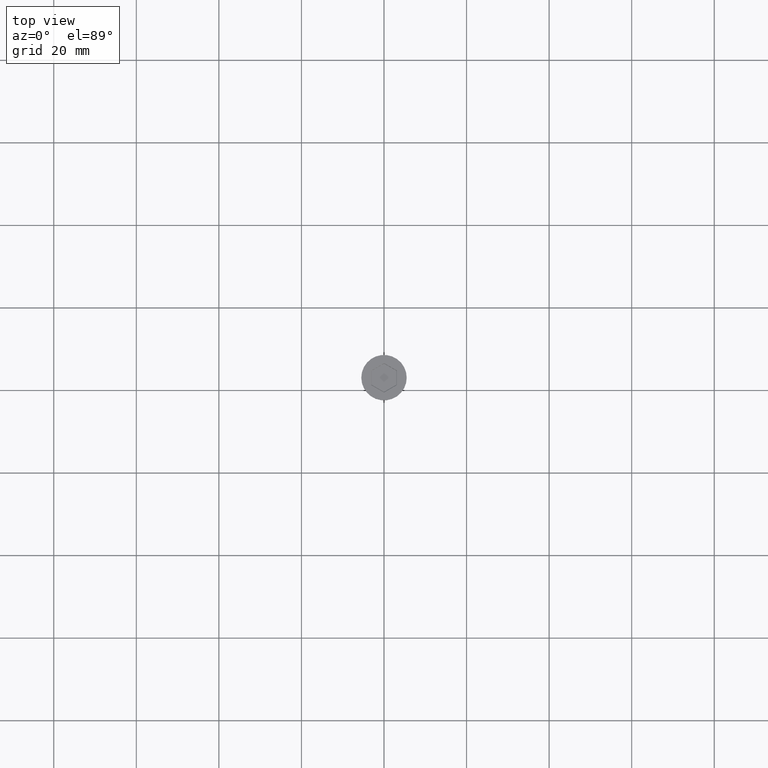
[diagram: clean part render]
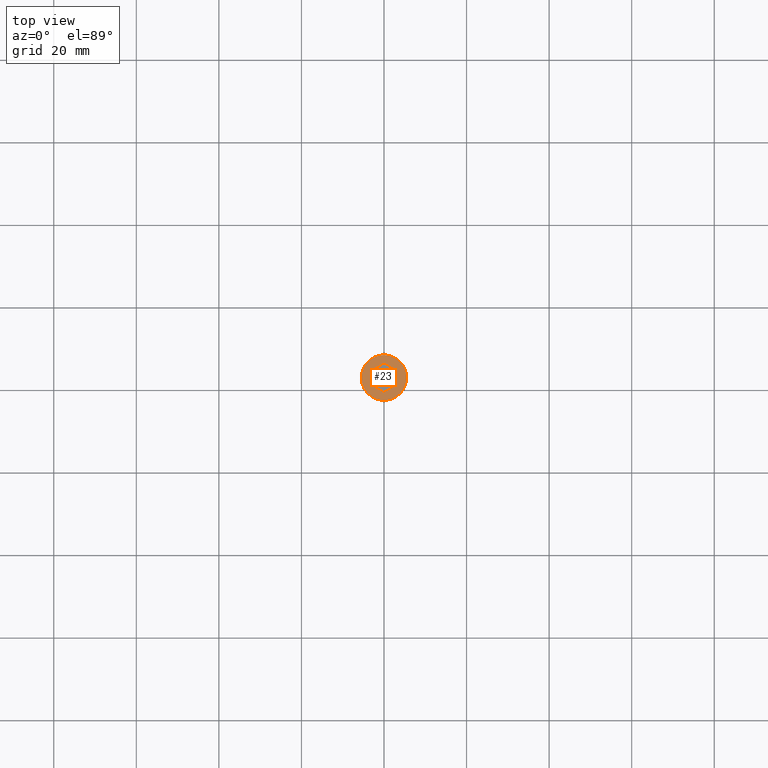
[diagram: same view with one face highlighted and labeled with its STEP entity id]
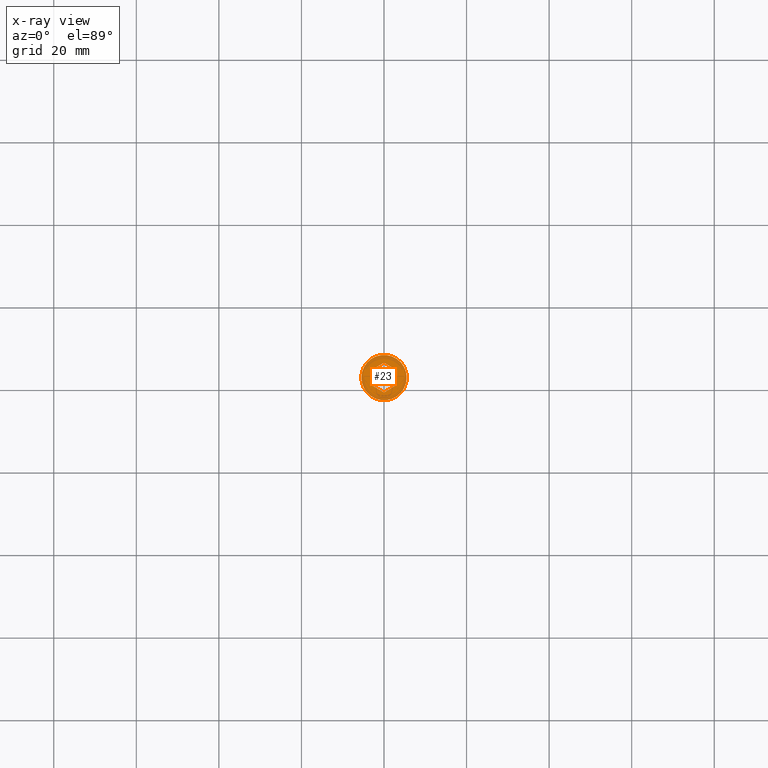
[diagram: x-ray of the same camera — body ghosted, the highlighted face saturated]
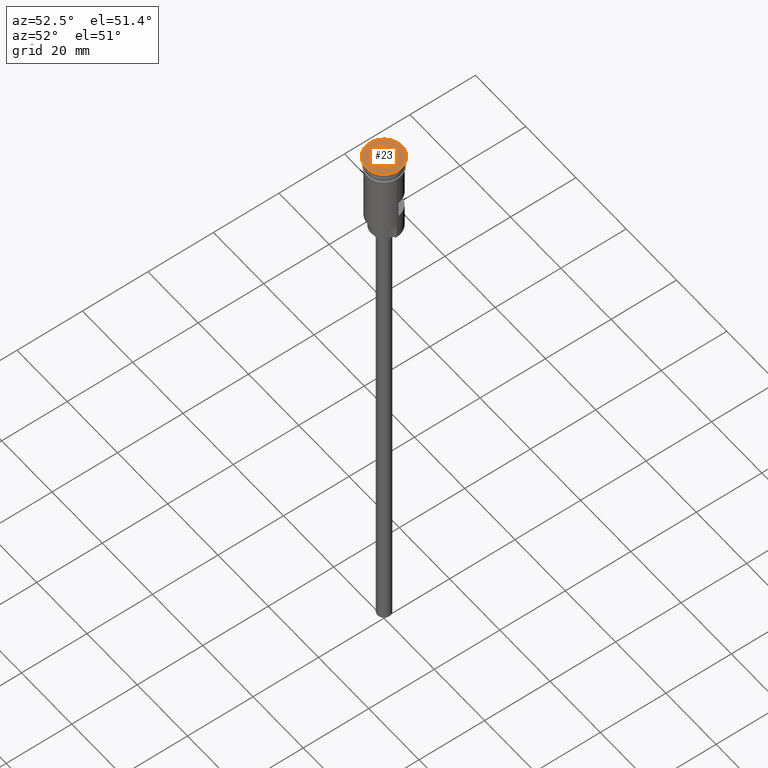
[diagram: same view with one face highlighted and labeled with its STEP entity id]
A machine part, top view. The second image highlights one B-rep face of the part: STEP entity #23.
The next image is the same camera in x-ray: the body ghosted, the highlighted face saturated — about 0% of this face is hidden behind the body in this view.
A second angle (auxiliary view) of the same face is appended — the face is thin or edge-on in the first view.
In plain terms, the highlighted planar face has unit normal (0, -0, 1).
Its self-contained STEP definition (entity closure, byte-faithful):
#23 = ADVANCED_FACE ( 'NONE', ( #244, #1460 ), #992, .T. ) ;
#55 = CARTESIAN_POINT ( 'NONE',  ( -3.049999999999991385, -1.818653347947305932, 0.000000000000000000 ) ) ;
#73 = CARTESIAN_POINT ( 'NONE',  ( 0.000000000000000000, 0.000000000000000000, 0.000000000000000000 ) ) ;
#76 = EDGE_CURVE ( 'NONE', #352, #1505, #1338, .T. ) ;
#86 = EDGE_LOOP ( 'NONE', ( #192, #917, #412, #1559, #678, #1256 ) ) ;
#89 = DIRECTION ( 'NONE',  ( 0.8660254037844388186, -0.4999999999999997780, 0.000000000000000000 ) ) ;
#144 = DIRECTION ( 'NONE',  ( -0.000000000000000000, -0.000000000000000000, 1.000000000000000000 ) ) ;
#192 = ORIENTED_EDGE ( 'NONE', *, *, #587, .T. ) ;
#226 = EDGE_CURVE ( 'NONE', #722, #1444, #449, .T. ) ;
#236 = DIRECTION ( 'NONE',  ( 0.8660254037844387076, 0.4999999999999998890, 0.000000000000000000 ) ) ;
#244 = FACE_BOUND ( 'NONE', #86, .T. ) ;
#257 = VECTOR ( 'NONE', #1161, 1000.000000000000000 ) ;
#307 = CARTESIAN_POINT ( 'NONE',  ( 3.099999999999982769, -1.789785834487828353, 0.000000000000000000 ) ) ;
#331 = VERTEX_POINT ( 'NONE', #307 ) ;
#348 = EDGE_CURVE ( 'NONE', #331, #722, #559, .T. ) ;
#352 = VERTEX_POINT ( 'NONE', #1550 ) ;
#411 = AXIS2_PLACEMENT_3D ( 'NONE', #1359, #144, #904 ) ;
#412 = ORIENTED_EDGE ( 'NONE', *, *, #691, .T. ) ;
#424 = CARTESIAN_POINT ( 'NONE',  ( -3.099999999999983213, 1.732050807568876971, 0.000000000000000000 ) ) ;
#429 = VERTEX_POINT ( 'NONE', #1500 ) ;
#435 = VERTEX_POINT ( 'NONE', #1242 ) ;
#442 = DIRECTION ( 'NONE',  ( -0.8660254037844387076, 0.4999999999999998335, 0.000000000000000000 ) ) ;
#449 = LINE ( 'NONE', #55, #887 ) ;
#461 = VECTOR ( 'NONE', #236, 1000.000000000000000 ) ;
#489 = CIRCLE ( 'NONE', #921, 5.500000000000000000 ) ;
#540 = AXIS2_PLACEMENT_3D ( 'NONE', #1482, #869, #591 ) ;
#559 = LINE ( 'NONE', #1318, #818 ) ;
#587 = EDGE_CURVE ( 'NONE', #1444, #352, #673, .T. ) ;
#591 = DIRECTION ( 'NONE',  ( 1.000000000000000000, 0.000000000000000000, 0.000000000000000000 ) ) ;
#673 = LINE ( 'NONE', #424, #1227 ) ;
#678 = ORIENTED_EDGE ( 'NONE', *, *, #348, .T. ) ;
#683 = CARTESIAN_POINT ( 'NONE',  ( 3.099999999999982769, -1.732050807568876083, 0.000000000000000000 ) ) ;
#691 = EDGE_CURVE ( 'NONE', #1505, #429, #862, .T. ) ;
#707 = CARTESIAN_POINT ( 'NONE',  ( 3.049999999999991829, 1.818653347947307708, 0.000000000000000000 ) ) ;
#722 = VERTEX_POINT ( 'NONE', #871 ) ;
#818 = VECTOR ( 'NONE', #1543, 1000.000000000000114 ) ;
#862 = LINE ( 'NONE', #707, #943 ) ;
#869 = DIRECTION ( 'NONE',  ( 0.000000000000000000, -0.000000000000000000, 1.000000000000000000 ) ) ;
#871 = CARTESIAN_POINT ( 'NONE',  ( -1.958864205101993824E-16, -3.579571668975658927, 0.000000000000000000 ) ) ;
#872 = CARTESIAN_POINT ( 'NONE',  ( 6.103073414120078086E-16, 3.579571668975660259, 0.000000000000000000 ) ) ;
#887 = VECTOR ( 'NONE', #442, 1000.000000000000000 ) ;
#904 = DIRECTION ( 'NONE',  ( 1.000000000000000000, 0.000000000000000000, 0.000000000000000000 ) ) ;
#915 = ORIENTED_EDGE ( 'NONE', *, *, #958, .T. ) ;
#917 = ORIENTED_EDGE ( 'NONE', *, *, #76, .T. ) ;
#921 = AXIS2_PLACEMENT_3D ( 'NONE', #73, #1549, #946 ) ;
#943 = VECTOR ( 'NONE', #89, 1000.000000000000114 ) ;
#946 = DIRECTION ( 'NONE',  ( 1.000000000000000000, 0.000000000000000000, 0.000000000000000000 ) ) ;
#958 = EDGE_CURVE ( 'NONE', #1310, #435, #974, .T. ) ;
#974 = CIRCLE ( 'NONE', #411, 5.500000000000000000 ) ;
#992 = PLANE ( 'NONE',  #540 ) ;
#1079 = EDGE_CURVE ( 'NONE', #435, #1310, #489, .T. ) ;
#1095 = CARTESIAN_POINT ( 'NONE',  ( 5.500000000000000000, 0.000000000000000000, 0.000000000000000000 ) ) ;
#1096 = ORIENTED_EDGE ( 'NONE', *, *, #1079, .T. ) ;
#1161 = DIRECTION ( 'NONE',  ( -1.251928832280966188E-16, -1.000000000000000000, 0.000000000000000000 ) ) ;
#1162 = DIRECTION ( 'NONE',  ( 0.000000000000000000, 1.000000000000000000, 0.000000000000000000 ) ) ;
#1227 = VECTOR ( 'NONE', #1162, 1000.000000000000000 ) ;
#1232 = EDGE_CURVE ( 'NONE', #429, #331, #1407, .T. ) ;
#1242 = CARTESIAN_POINT ( 'NONE',  ( -5.500000000000000000, 6.735557395310442023E-16, 0.000000000000000000 ) ) ;
#1256 = ORIENTED_EDGE ( 'NONE', *, *, #226, .T. ) ;
#1310 = VERTEX_POINT ( 'NONE', #1095 ) ;
#1318 = CARTESIAN_POINT ( 'NONE',  ( 0.04999999999999141936, -3.550704155516182237, 0.000000000000000000 ) ) ;
#1325 = EDGE_LOOP ( 'NONE', ( #915, #1096 ) ) ;
#1338 = LINE ( 'NONE', #1361, #461 ) ;
#1359 = CARTESIAN_POINT ( 'NONE',  ( 0.000000000000000000, 0.000000000000000000, 0.000000000000000000 ) ) ;
#1361 = CARTESIAN_POINT ( 'NONE',  ( -0.04999999999999187039, 3.550704155516183125, 0.000000000000000000 ) ) ;
#1407 = LINE ( 'NONE', #683, #257 ) ;
#1437 = CARTESIAN_POINT ( 'NONE',  ( -3.099999999999983213, -1.789785834487829241, 0.000000000000000000 ) ) ;
#1444 = VERTEX_POINT ( 'NONE', #1437 ) ;
#1460 = FACE_OUTER_BOUND ( 'NONE', #1325, .T. ) ;
#1482 = CARTESIAN_POINT ( 'NONE',  ( 0.000000000000000000, 0.000000000000000000, 0.000000000000000000 ) ) ;
#1500 = CARTESIAN_POINT ( 'NONE',  ( 3.099999999999983213, 1.789785834487831462, 0.000000000000000000 ) ) ;
#1505 = VERTEX_POINT ( 'NONE', #872 ) ;
#1543 = DIRECTION ( 'NONE',  ( -0.8660254037844385966, -0.5000000000000001110, 0.000000000000000000 ) ) ;
#1549 = DIRECTION ( 'NONE',  ( -0.000000000000000000, -0.000000000000000000, 1.000000000000000000 ) ) ;
#1550 = CARTESIAN_POINT ( 'NONE',  ( -3.099999999999983213, 1.789785834487829908, 0.000000000000000000 ) ) ;
#1559 = ORIENTED_EDGE ( 'NONE', *, *, #1232, .T. ) ;